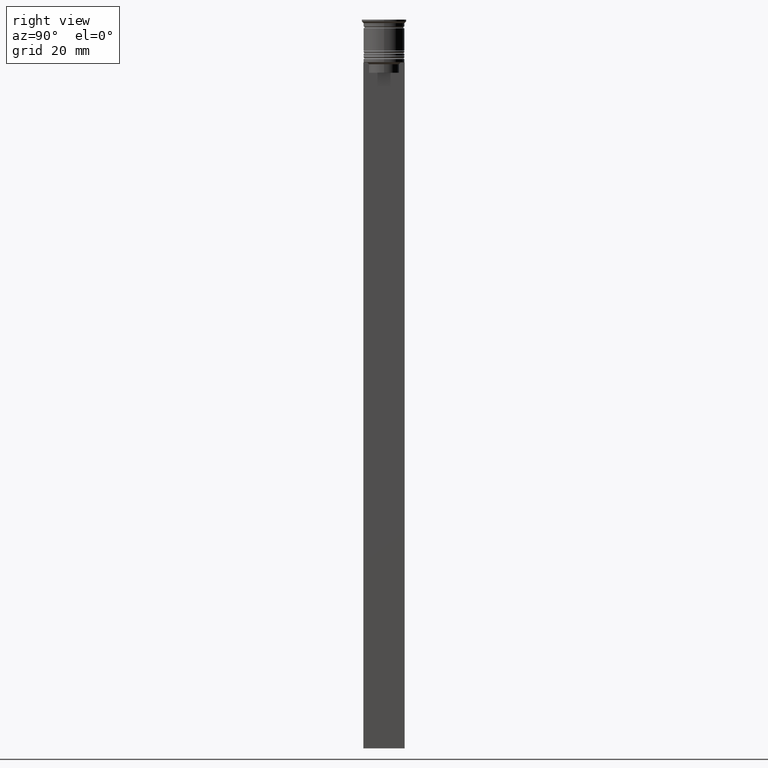
[diagram: clean part render]
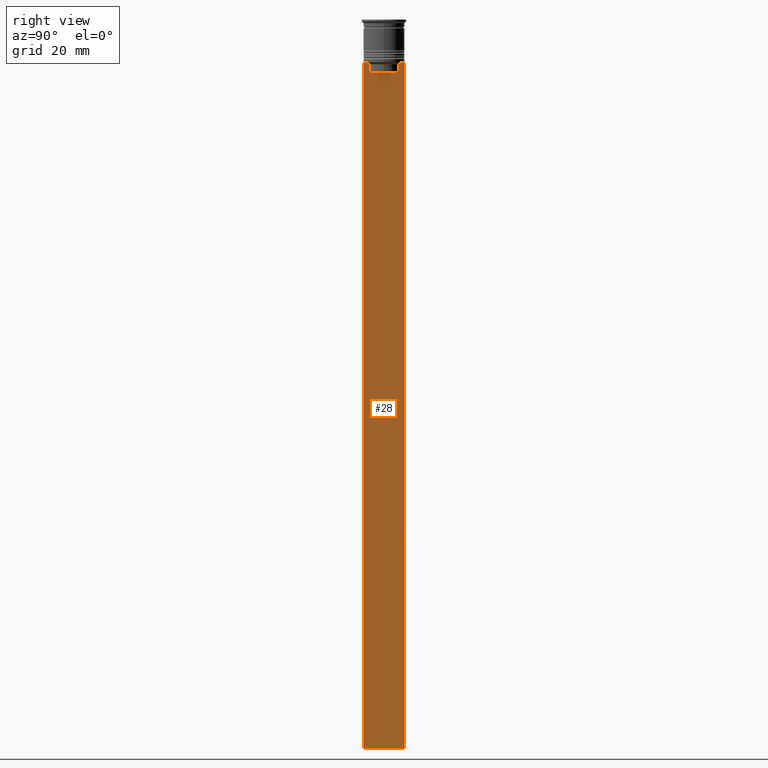
[diagram: same view with one face highlighted and labeled with its STEP entity id]
A machine part, right view. The second image highlights one B-rep face of the part: STEP entity #28.
In plain terms, the highlighted planar face has unit normal (-1, 0, 0).
Its self-contained STEP definition (entity closure, byte-faithful):
#5 = ORIENTED_EDGE ( 'NONE', *, *, #1175, .T. ) ;
#7 = CARTESIAN_POINT ( 'NONE',  ( 0.5000000000000002220, 5.878775382679627626, -12.50000000000000000 ) ) ;
#9 = CARTESIAN_POINT ( 'NONE',  ( 0.5000000000000002220, -4.706831372970962768, -12.66671687695981774 ) ) ;
#25 = CARTESIAN_POINT ( 'NONE',  ( 0.5000000000000002220, -4.371498598878878816, 0.000000000000000000 ) ) ;
#28 = ADVANCED_FACE ( 'NONE', ( #2014 ), #840, .F. ) ;
#86 = VERTEX_POINT ( 'NONE', #1868 ) ;
#115 = LINE ( 'NONE', #1654, #340 ) ;
#155 = CARTESIAN_POINT ( 'NONE',  ( 0.5000000000000002220, -6.000000000000000000, -212.5000000000000284 ) ) ;
#169 = CARTESIAN_POINT ( 'NONE',  ( 0.5000000000000002220, 4.874423042781576676, -12.50000000000000000 ) ) ;
#258 = DIRECTION ( 'NONE',  ( -1.000000000000000000, 0.000000000000000000, 0.000000000000000000 ) ) ;
#320 = DIRECTION ( 'NONE',  ( 0.000000000000000000, -1.000000000000000000, 0.000000000000000000 ) ) ;
#340 = VECTOR ( 'NONE', #320, 1000.000000000000000 ) ;
#410 = VERTEX_POINT ( 'NONE', #447 ) ;
#436 = B_SPLINE_CURVE_WITH_KNOTS ( 'NONE', 3,
 ( #1155, #1930, #9, #783 ),
 .UNSPECIFIED., .F., .F.,
 ( 4, 4 ),
 ( 0.02089901220910808308, 0.02161421017310286019 ),
 .UNSPECIFIED. ) ;
#447 = CARTESIAN_POINT ( 'NONE',  ( 0.5000000000000002220, -5.878775382679627626, -12.50000000000000000 ) ) ;
#455 = LINE ( 'NONE', #1218, #1659 ) ;
#569 = VERTEX_POINT ( 'NONE', #2413 ) ;
#592 = LINE ( 'NONE', #942, #2066 ) ;
#596 = VERTEX_POINT ( 'NONE', #1651 ) ;
#604 = DIRECTION ( 'NONE',  ( 0.000000000000000000, 0.000000000000000000, -1.000000000000000000 ) ) ;
#613 = DIRECTION ( 'NONE',  ( -0.000000000000000000, -0.000000000000000000, 1.000000000000000000 ) ) ;
#620 = VECTOR ( 'NONE', #1910, 1000.000000000000000 ) ;
#702 = CARTESIAN_POINT ( 'NONE',  ( 0.5000000000000002220, -6.000000000000000000, -12.50000000000000000 ) ) ;
#721 = EDGE_CURVE ( 'NONE', #2389, #849, #436, .T. ) ;
#730 = VERTEX_POINT ( 'NONE', #1877 ) ;
#735 = DIRECTION ( 'NONE',  ( 0.000000000000000000, -1.000000000000000000, 0.000000000000000000 ) ) ;
#751 = LINE ( 'NONE', #1158, #620 ) ;
#755 = VERTEX_POINT ( 'NONE', #821 ) ;
#783 = CARTESIAN_POINT ( 'NONE',  ( 0.5000000000000002220, -4.874423042781576676, -12.50000000000000000 ) ) ;
#802 = EDGE_CURVE ( 'NONE', #596, #569, #2346, .T. ) ;
#821 = CARTESIAN_POINT ( 'NONE',  ( 0.5000000000000002220, 4.371498598878878816, -15.50000000000000000 ) ) ;
#828 = CARTESIAN_POINT ( 'NONE',  ( 0.5000000000000002220, 4.371498598878878816, 0.000000000000000000 ) ) ;
#840 = PLANE ( 'NONE',  #2352 ) ;
#849 = VERTEX_POINT ( 'NONE', #1762 ) ;
#863 = EDGE_CURVE ( 'NONE', #755, #86, #455, .T. ) ;
#867 = VECTOR ( 'NONE', #913, 1000.000000000000000 ) ;
#905 = EDGE_CURVE ( 'NONE', #86, #2389, #1193, .T. ) ;
#913 = DIRECTION ( 'NONE',  ( 0.000000000000000000, 0.000000000000000000, -1.000000000000000000 ) ) ;
#921 = ORIENTED_EDGE ( 'NONE', *, *, #863, .T. ) ;
#924 = LINE ( 'NONE', #2460, #1295 ) ;
#942 = CARTESIAN_POINT ( 'NONE',  ( 0.5000000000000002220, -6.000000000000000000, -212.5000000000000284 ) ) ;
#950 = EDGE_CURVE ( 'NONE', #730, #1250, #1837, .T. ) ;
#965 = EDGE_CURVE ( 'NONE', #1737, #569, #592, .T. ) ;
#1005 = CARTESIAN_POINT ( 'NONE',  ( 0.5000000000000002220, 6.000000000000000888, -0.4584054212077061097 ) ) ;
#1059 = VECTOR ( 'NONE', #604, 1000.000000000000000 ) ;
#1136 = VECTOR ( 'NONE', #1690, 1000.000000000000000 ) ;
#1155 = CARTESIAN_POINT ( 'NONE',  ( 0.5000000000000002220, -4.371498598878878816, -13.00000000000000178 ) ) ;
#1158 = CARTESIAN_POINT ( 'NONE',  ( 0.5000000000000002220, -6.000000000000000000, -0.4584054212077061097 ) ) ;
#1175 = EDGE_CURVE ( 'NONE', #849, #410, #1691, .T. ) ;
#1193 = LINE ( 'NONE', #25, #1986 ) ;
#1218 = CARTESIAN_POINT ( 'NONE',  ( 0.5000000000000002220, 4.399999999999999467, -15.50000000000000000 ) ) ;
#1250 = VERTEX_POINT ( 'NONE', #1871 ) ;
#1292 = CARTESIAN_POINT ( 'NONE',  ( 0.5000000000000002220, -6.000000000000000000, -12.50000000000000000 ) ) ;
#1295 = VECTOR ( 'NONE', #735, 1000.000000000000000 ) ;
#1363 = EDGE_CURVE ( 'NONE', #1683, #1737, #751, .T. ) ;
#1409 = ORIENTED_EDGE ( 'NONE', *, *, #905, .T. ) ;
#1460 = VECTOR ( 'NONE', #2228, 1000.000000000000000 ) ;
#1482 = ORIENTED_EDGE ( 'NONE', *, *, #802, .F. ) ;
#1498 = CARTESIAN_POINT ( 'NONE',  ( 0.5000000000000002220, -6.000000000000000000, -12.50000000000000000 ) ) ;
#1527 = ORIENTED_EDGE ( 'NONE', *, *, #1765, .T. ) ;
#1532 = ORIENTED_EDGE ( 'NONE', *, *, #1603, .T. ) ;
#1547 = CARTESIAN_POINT ( 'NONE',  ( 0.5000000000000002220, 4.371498598878878816, -13.00000000000000178 ) ) ;
#1599 = ORIENTED_EDGE ( 'NONE', *, *, #965, .T. ) ;
#1603 = EDGE_CURVE ( 'NONE', #1250, #755, #1974, .T. ) ;
#1619 = DIRECTION ( 'NONE',  ( 0.000000000000000000, 0.000000000000000000, 1.000000000000000000 ) ) ;
#1651 = CARTESIAN_POINT ( 'NONE',  ( 0.5000000000000002220, 6.000000000000000888, -12.50000000000000000 ) ) ;
#1654 = CARTESIAN_POINT ( 'NONE',  ( 0.5000000000000002220, -6.000000000000000000, -12.50000000000000000 ) ) ;
#1659 = VECTOR ( 'NONE', #1997, 1000.000000000000000 ) ;
#1683 = VERTEX_POINT ( 'NONE', #1292 ) ;
#1688 = ORIENTED_EDGE ( 'NONE', *, *, #1363, .T. ) ;
#1690 = DIRECTION ( 'NONE',  ( 0.000000000000000000, -1.000000000000000000, 0.000000000000000000 ) ) ;
#1691 = LINE ( 'NONE', #702, #1460 ) ;
#1737 = VERTEX_POINT ( 'NONE', #155 ) ;
#1762 = CARTESIAN_POINT ( 'NONE',  ( 0.5000000000000002220, -4.874423042781576676, -12.50000000000000000 ) ) ;
#1765 = EDGE_CURVE ( 'NONE', #410, #1683, #115, .T. ) ;
#1767 = EDGE_CURVE ( 'NONE', #596, #1965, #2274, .T. ) ;
#1771 = ORIENTED_EDGE ( 'NONE', *, *, #721, .T. ) ;
#1778 = EDGE_CURVE ( 'NONE', #1965, #730, #924, .T. ) ;
#1837 = B_SPLINE_CURVE_WITH_KNOTS ( 'NONE', 3,
 ( #169, #2120, #1915, #1547 ),
 .UNSPECIFIED., .F., .F.,
 ( 4, 4 ),
 ( 0.008336552452178421987, 0.009045730124312839626 ),
 .UNSPECIFIED. ) ;
#1868 = CARTESIAN_POINT ( 'NONE',  ( 0.5000000000000002220, -4.371498598878878816, -15.50000000000000000 ) ) ;
#1871 = CARTESIAN_POINT ( 'NONE',  ( 0.5000000000000002220, 4.371498598878878816, -13.00000000000000178 ) ) ;
#1877 = CARTESIAN_POINT ( 'NONE',  ( 0.5000000000000002220, 4.874423042781576676, -12.50000000000000000 ) ) ;
#1910 = DIRECTION ( 'NONE',  ( 0.000000000000000000, 0.000000000000000000, -1.000000000000000000 ) ) ;
#1915 = CARTESIAN_POINT ( 'NONE',  ( 0.5000000000000002220, 4.539195634199896467, -12.83338923751318816 ) ) ;
#1925 = EDGE_LOOP ( 'NONE', ( #2091, #2309, #1532, #921, #1409, #1771, #5, #1527, #1688, #1599, #1482, #2224 ) ) ;
#1930 = CARTESIAN_POINT ( 'NONE',  ( 0.5000000000000002220, -4.539195586926423331, -12.83338928448044314 ) ) ;
#1961 = CARTESIAN_POINT ( 'NONE',  ( 0.5000000000000002220, -6.000000000000000000, -0.4584054212077061097 ) ) ;
#1965 = VERTEX_POINT ( 'NONE', #7 ) ;
#1974 = LINE ( 'NONE', #828, #867 ) ;
#1986 = VECTOR ( 'NONE', #613, 1000.000000000000000 ) ;
#1997 = DIRECTION ( 'NONE',  ( 0.000000000000000000, -1.000000000000000000, 0.000000000000000000 ) ) ;
#2014 = FACE_OUTER_BOUND ( 'NONE', #1925, .T. ) ;
#2066 = VECTOR ( 'NONE', #2333, 1000.000000000000000 ) ;
#2091 = ORIENTED_EDGE ( 'NONE', *, *, #1778, .T. ) ;
#2120 = CARTESIAN_POINT ( 'NONE',  ( 0.5000000000000002220, 4.706831415367288329, -12.66671683478479160 ) ) ;
#2224 = ORIENTED_EDGE ( 'NONE', *, *, #1767, .T. ) ;
#2228 = DIRECTION ( 'NONE',  ( 0.000000000000000000, -1.000000000000000000, 0.000000000000000000 ) ) ;
#2274 = LINE ( 'NONE', #1498, #1136 ) ;
#2309 = ORIENTED_EDGE ( 'NONE', *, *, #950, .T. ) ;
#2333 = DIRECTION ( 'NONE',  ( 0.000000000000000000, 1.000000000000000000, 0.000000000000000000 ) ) ;
#2346 = LINE ( 'NONE', #1005, #1059 ) ;
#2352 = AXIS2_PLACEMENT_3D ( 'NONE', #1961, #258, #1619 ) ;
#2389 = VERTEX_POINT ( 'NONE', #2489 ) ;
#2413 = CARTESIAN_POINT ( 'NONE',  ( 0.5000000000000002220, 6.000000000000000888, -212.5000000000000284 ) ) ;
#2460 = CARTESIAN_POINT ( 'NONE',  ( 0.5000000000000002220, -6.000000000000000000, -12.50000000000000000 ) ) ;
#2489 = CARTESIAN_POINT ( 'NONE',  ( 0.5000000000000002220, -4.371498598878878816, -13.00000000000000178 ) ) ;